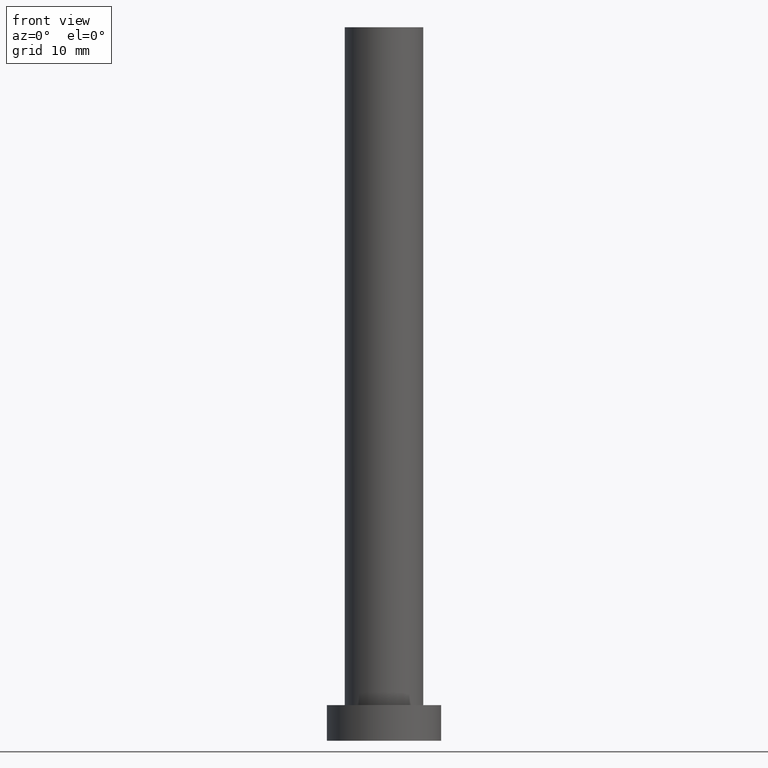
[diagram: clean part render]
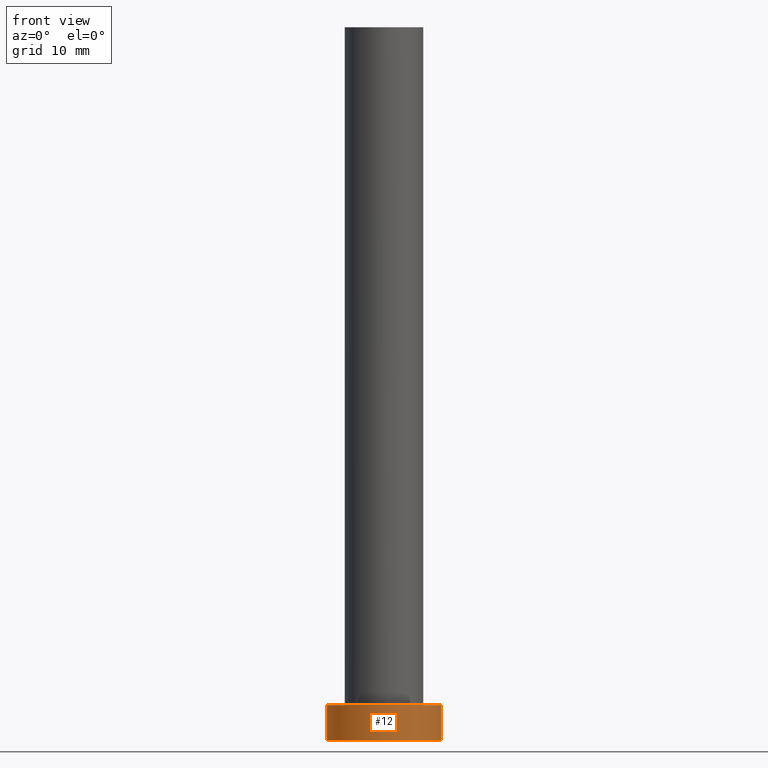
[diagram: same view with one face highlighted and labeled with its STEP entity id]
A machine part, front view. The second image highlights one B-rep face of the part: STEP entity #12.
In plain terms, the highlighted cylindrical surface (partial cylindrical patch) has radius 8 mm, axis along (-0, -0, -1).
Its self-contained STEP definition (entity closure, byte-faithful):
#6 = CARTESIAN_POINT ( 'NONE',  ( 8.000000000000000000, 9.797174393178825657E-16, 0.000000000000000000 ) ) ;
#8 = CARTESIAN_POINT ( 'NONE',  ( 0.000000000000000000, 0.000000000000000000, 5.000000000000000000 ) ) ;
#12 = ADVANCED_FACE ( 'NONE', ( #171 ), #29, .T. ) ;
#14 = CARTESIAN_POINT ( 'NONE',  ( -8.000000000000000000, 0.000000000000000000, 5.000000000000000000 ) ) ;
#15 = DIRECTION ( 'NONE',  ( -0.000000000000000000, -0.000000000000000000, -1.000000000000000000 ) ) ;
#22 = AXIS2_PLACEMENT_3D ( 'NONE', #217, #32, #120 ) ;
#23 = EDGE_CURVE ( 'NONE', #61, #88, #68, .T. ) ;
#28 = EDGE_CURVE ( 'NONE', #80, #233, #57, .T. ) ;
#29 = CYLINDRICAL_SURFACE ( 'NONE', #153, 8.000000000000000000 ) ;
#32 = DIRECTION ( 'NONE',  ( 0.000000000000000000, 0.000000000000000000, 1.000000000000000000 ) ) ;
#35 = VECTOR ( 'NONE', #47, 1000.000000000000000 ) ;
#42 = VECTOR ( 'NONE', #15, 1000.000000000000000 ) ;
#47 = DIRECTION ( 'NONE',  ( -0.000000000000000000, -0.000000000000000000, -1.000000000000000000 ) ) ;
#56 = CARTESIAN_POINT ( 'NONE',  ( 0.000000000000000000, 0.000000000000000000, 0.000000000000000000 ) ) ;
#57 = CIRCLE ( 'NONE', #236, 8.000000000000000000 ) ;
#58 = CARTESIAN_POINT ( 'NONE',  ( 8.000000000000000000, 9.797174393178825657E-16, 5.000000000000000000 ) ) ;
#61 = VERTEX_POINT ( 'NONE', #14 ) ;
#68 = CIRCLE ( 'NONE', #22, 8.000000000000000000 ) ;
#80 = VERTEX_POINT ( 'NONE', #239 ) ;
#88 = VERTEX_POINT ( 'NONE', #221 ) ;
#96 = DIRECTION ( 'NONE',  ( 1.000000000000000000, 0.000000000000000000, 0.000000000000000000 ) ) ;
#108 = CARTESIAN_POINT ( 'NONE',  ( -8.000000000000000000, 0.000000000000000000, 5.000000000000000000 ) ) ;
#117 = EDGE_CURVE ( 'NONE', #88, #233, #222, .T. ) ;
#120 = DIRECTION ( 'NONE',  ( 1.000000000000000000, 0.000000000000000000, 0.000000000000000000 ) ) ;
#135 = DIRECTION ( 'NONE',  ( 0.000000000000000000, 0.000000000000000000, 1.000000000000000000 ) ) ;
#149 = ORIENTED_EDGE ( 'NONE', *, *, #28, .T. ) ;
#152 = EDGE_CURVE ( 'NONE', #61, #80, #205, .T. ) ;
#153 = AXIS2_PLACEMENT_3D ( 'NONE', #8, #190, #194 ) ;
#169 = ORIENTED_EDGE ( 'NONE', *, *, #117, .F. ) ;
#171 = FACE_OUTER_BOUND ( 'NONE', #246, .T. ) ;
#190 = DIRECTION ( 'NONE',  ( -0.000000000000000000, -0.000000000000000000, -1.000000000000000000 ) ) ;
#194 = DIRECTION ( 'NONE',  ( -1.000000000000000000, 0.000000000000000000, 0.000000000000000000 ) ) ;
#205 = LINE ( 'NONE', #108, #35 ) ;
#206 = ORIENTED_EDGE ( 'NONE', *, *, #152, .T. ) ;
#217 = CARTESIAN_POINT ( 'NONE',  ( 0.000000000000000000, 0.000000000000000000, 5.000000000000000000 ) ) ;
#221 = CARTESIAN_POINT ( 'NONE',  ( 8.000000000000000000, 9.797174393178825657E-16, 5.000000000000000000 ) ) ;
#222 = LINE ( 'NONE', #58, #42 ) ;
#232 = ORIENTED_EDGE ( 'NONE', *, *, #23, .F. ) ;
#233 = VERTEX_POINT ( 'NONE', #6 ) ;
#236 = AXIS2_PLACEMENT_3D ( 'NONE', #56, #135, #96 ) ;
#239 = CARTESIAN_POINT ( 'NONE',  ( -8.000000000000000000, 0.000000000000000000, 0.000000000000000000 ) ) ;
#246 = EDGE_LOOP ( 'NONE', ( #169, #232, #206, #149 ) ) ;